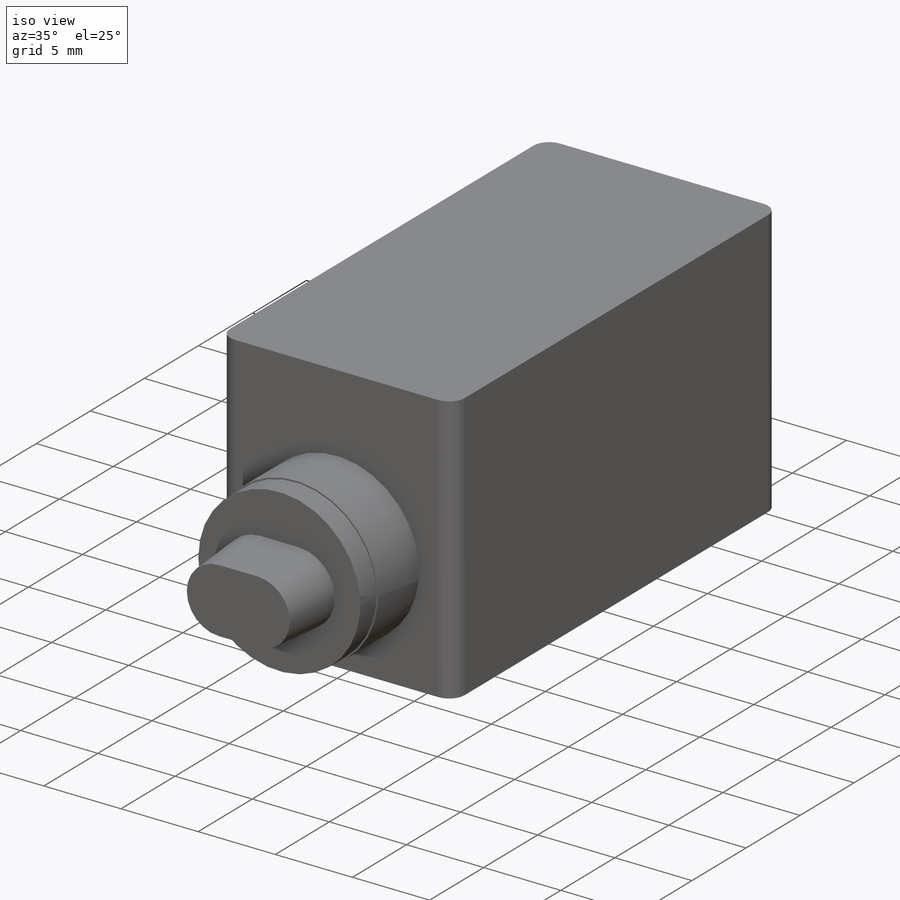
[diagram: iso view]
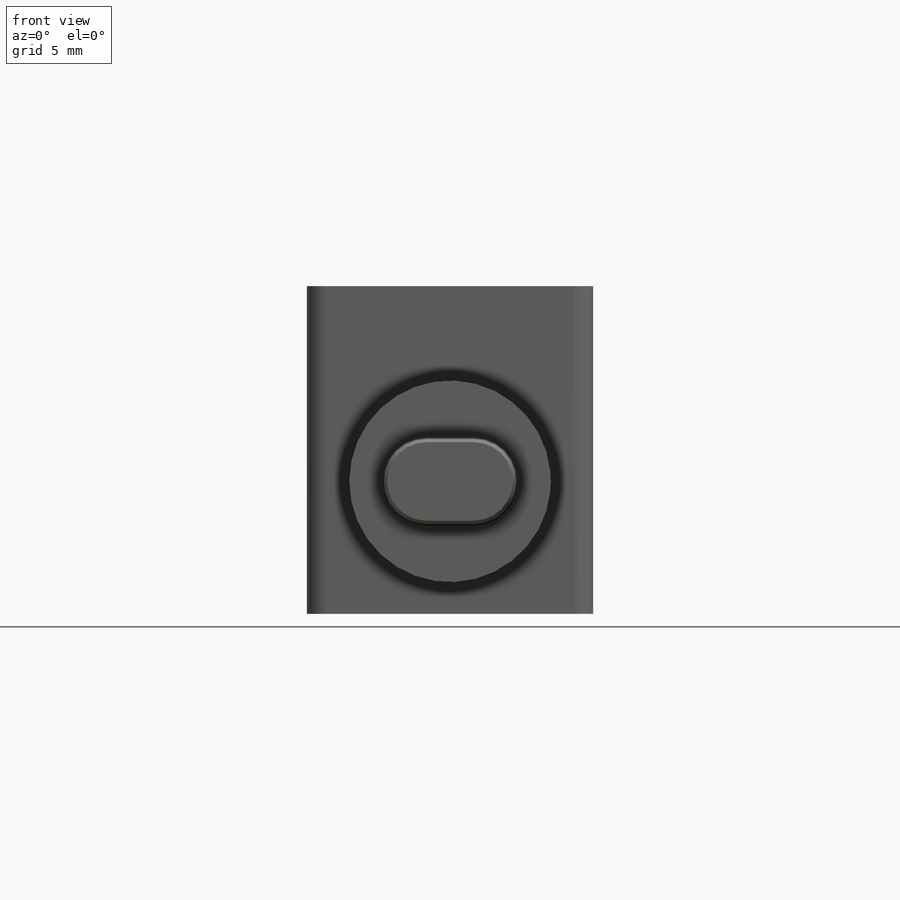
[diagram: front view]
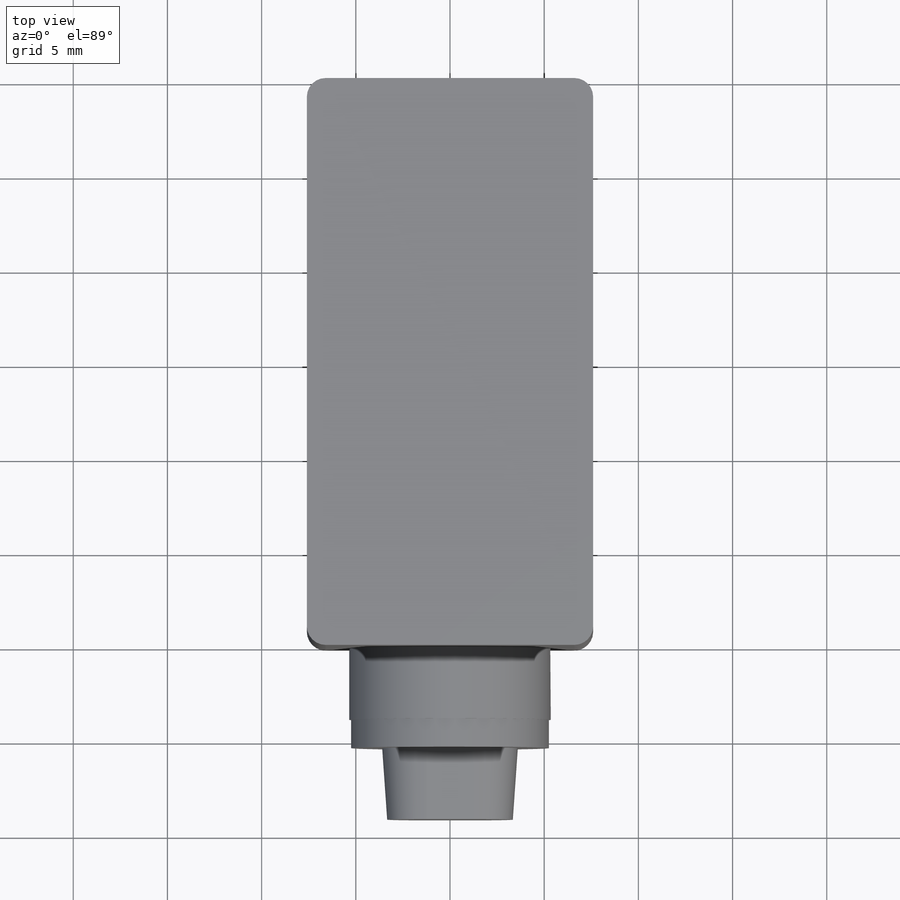
[diagram: top view]
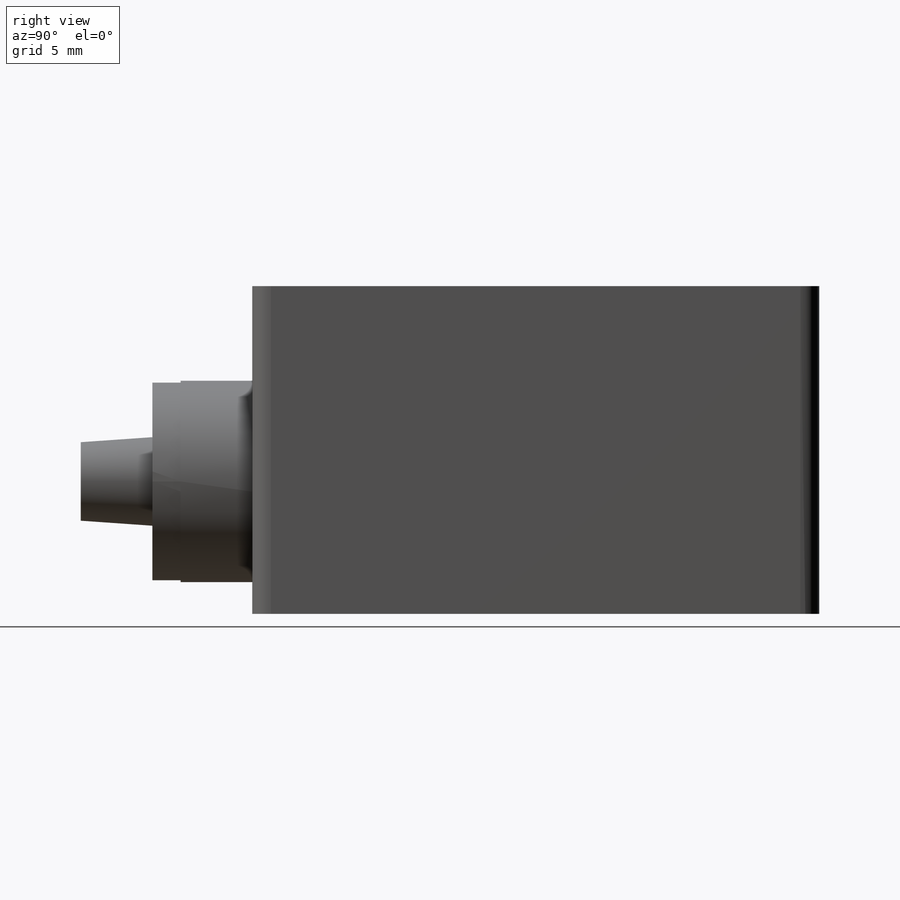
[diagram: right view]
SOLIDWORKS PART (.sldprt)
format: sldprt  version: not decoded by parser v0  size: 182,784 bytes
history: native  units: mm
features: sketch x4, extrude x4, material x1, fillet x1 (+11 scaffold rows collapsed)
feature tree (21):
  scaffold x11  (default folders/planes/origin — collapsed)
  material  "Material <not specified>"
  sketch  "Sketch1"  dims[D1=15.2mm D2=30.1mm]
  extrude  "Boss-Extrude1"  Depth=17.4mm
  fillet  "Fillet1"  Radius=1mm
  sketch  "Sketch3"  dims[D1=10.7mm]
  extrude  "Boss-Extrude2"  Depth=3.8mm
  sketch  "Sketch4"  dims[D1=0.1mm]
  extrude  "Boss-Extrude3"  Depth=1.5mm
  sketch  "Sketch5"  dims[D1=2.5mm D2=4.7mm]
  extrude  "Boss-Extrude4"  Depth=3.8mm
decode coverage: 9 of 9 modeling features carry decoded parameters
note: suppression state not decoded; provenance and decode notes live in map.json
